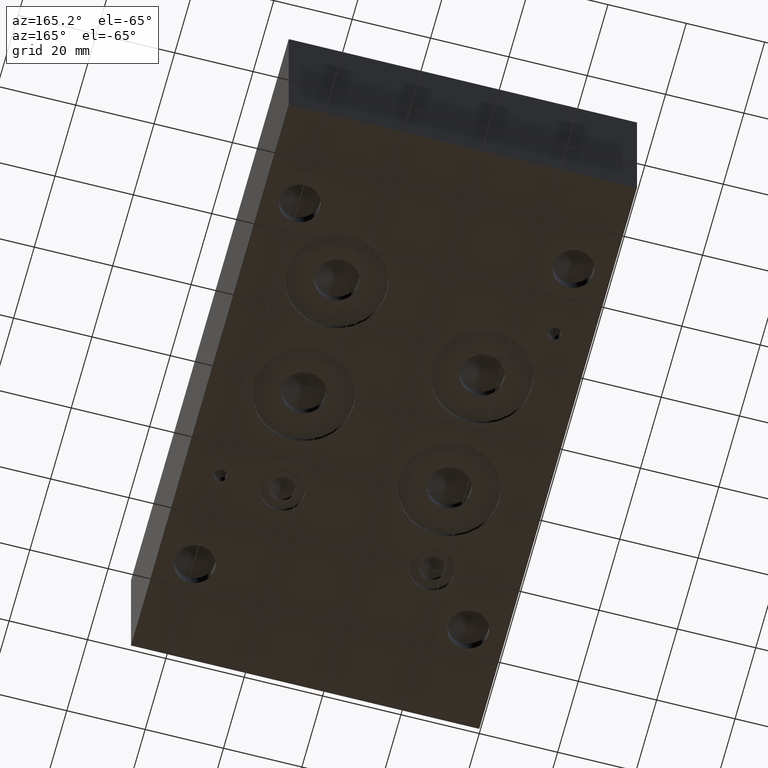
[diagram: clean part render]
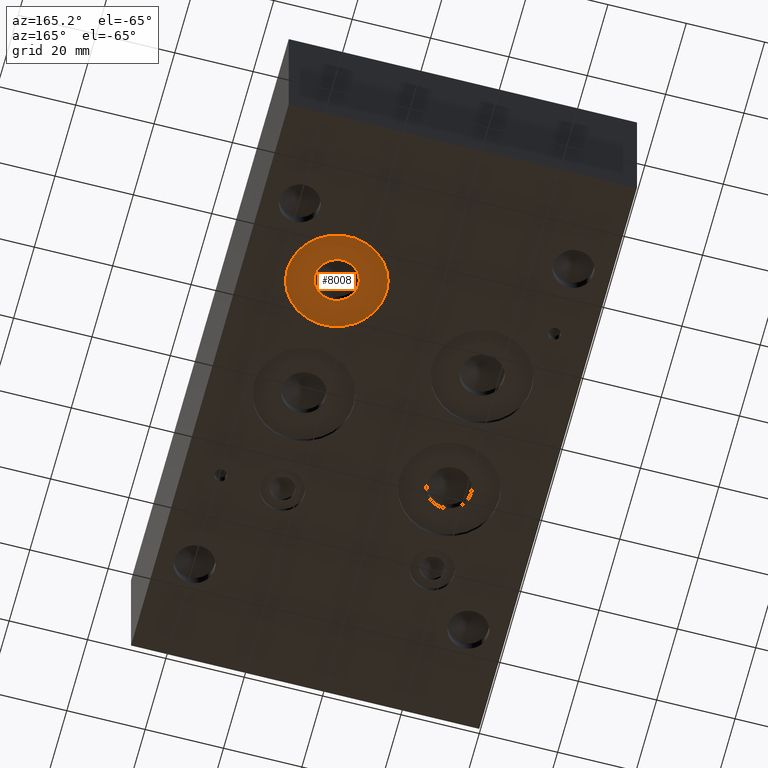
[diagram: same view with one face highlighted and labeled with its STEP entity id]
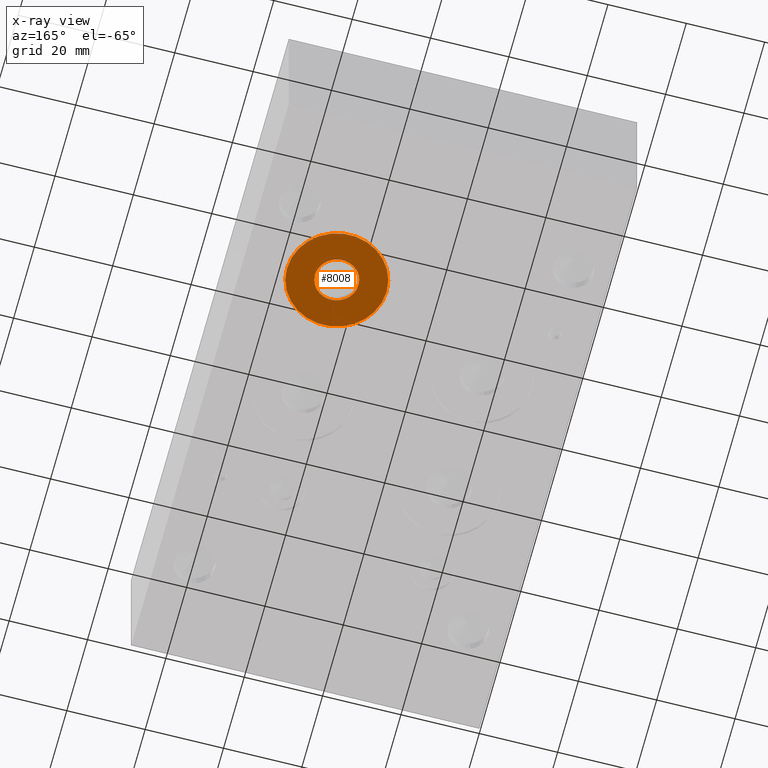
[diagram: x-ray of the same camera — body ghosted, the highlighted face saturated]
A machine part, auxiliary view. The second image highlights one B-rep face of the part: STEP entity #8008.
The next image is the same camera in x-ray: the body ghosted, the highlighted face saturated — about 0% of this face is hidden behind the body in this view.
In plain terms, the highlighted planar face has unit normal (0, 0, -1).
Its self-contained STEP definition (entity closure, byte-faithful):
#76=CIRCLE('',#8371,5.5626);
#90=CIRCLE('',#8392,12.7);
#91=CIRCLE('',#8393,12.7);
#261=FACE_BOUND('',#1311,.T.);
#866=FACE_OUTER_BOUND('',#1310,.T.);
#1310=EDGE_LOOP('',(#6732,#6733));
#1311=EDGE_LOOP('',(#6734));
#3634=VERTEX_POINT('',#13174);
#3649=VERTEX_POINT('',#13215);
#3650=VERTEX_POINT('',#13217);
#4696=EDGE_CURVE('',#3634,#3634,#76,.T.);
#4716=EDGE_CURVE('',#3650,#3649,#90,.T.);
#4717=EDGE_CURVE('',#3649,#3650,#91,.T.);
#6732=ORIENTED_EDGE('',*,*,#4716,.T.);
#6733=ORIENTED_EDGE('',*,*,#4717,.T.);
#6734=ORIENTED_EDGE('',*,*,#4696,.T.);
#7335=PLANE('',#8394);
#8008=ADVANCED_FACE('',(#866,#261),#7335,.T.);
#8371=AXIS2_PLACEMENT_3D('',#13175,#9878,#9879);
#8392=AXIS2_PLACEMENT_3D('',#13218,#9926,#9927);
#8393=AXIS2_PLACEMENT_3D('',#13219,#9928,#9929);
#8394=AXIS2_PLACEMENT_3D('',#13220,#9930,#9931);
#9878=DIRECTION('center_axis',(0.,0.,1.));
#9879=DIRECTION('ref_axis',(1.,0.,0.));
#9926=DIRECTION('center_axis',(0.,0.,-1.));
#9927=DIRECTION('ref_axis',(1.,0.,0.));
#9928=DIRECTION('center_axis',(0.,0.,-1.));
#9929=DIRECTION('ref_axis',(1.,0.,0.));
#9930=DIRECTION('center_axis',(0.,0.,-1.));
#9931=DIRECTION('ref_axis',(1.,0.,0.));
#13174=CARTESIAN_POINT('',(59.5376,108.7374,1.016));
#13175=CARTESIAN_POINT('Origin',(65.1002,108.7374,1.016));
#13215=CARTESIAN_POINT('',(52.4002,108.7374,1.016));
#13217=CARTESIAN_POINT('',(77.8002,108.7374,1.016));
#13218=CARTESIAN_POINT('Origin',(65.1002,108.7374,1.016));
#13219=CARTESIAN_POINT('Origin',(65.1002,108.7374,1.016));
#13220=CARTESIAN_POINT('Origin',(65.1002,108.7374,1.016));